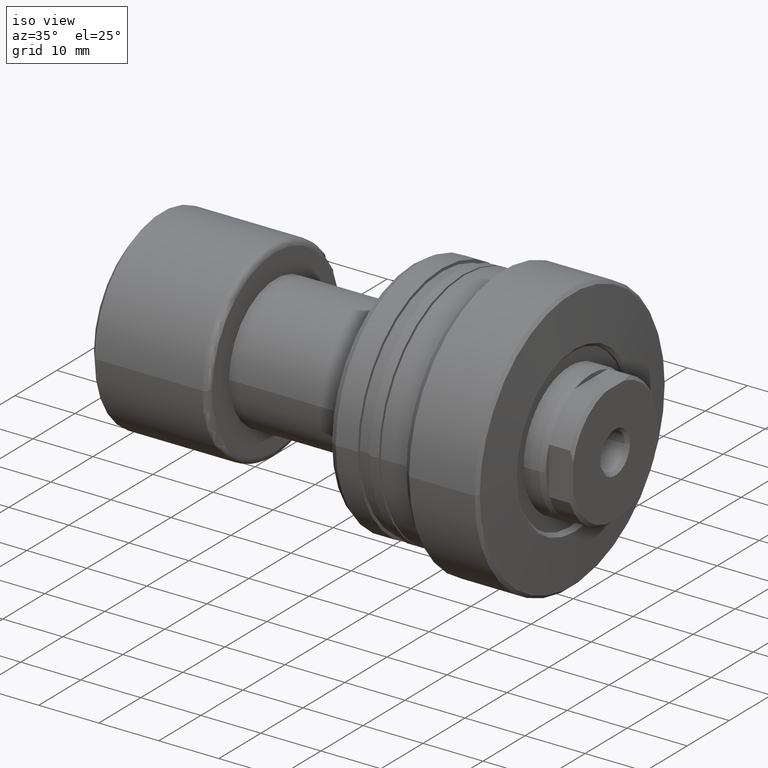
[diagram: clean part render]
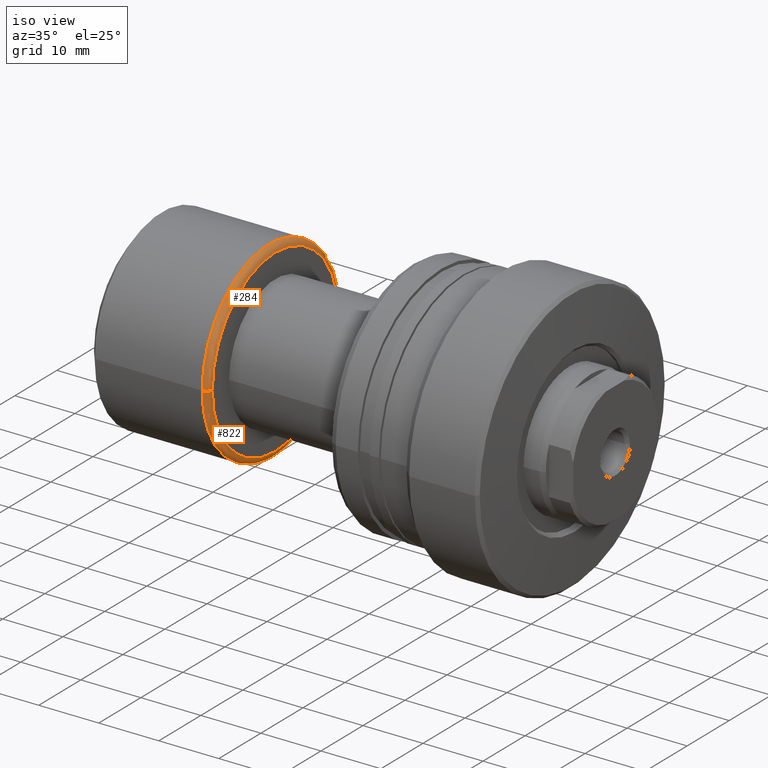
[diagram: same view with one multi-face feature highlighted, each face labeled with its STEP entity id]
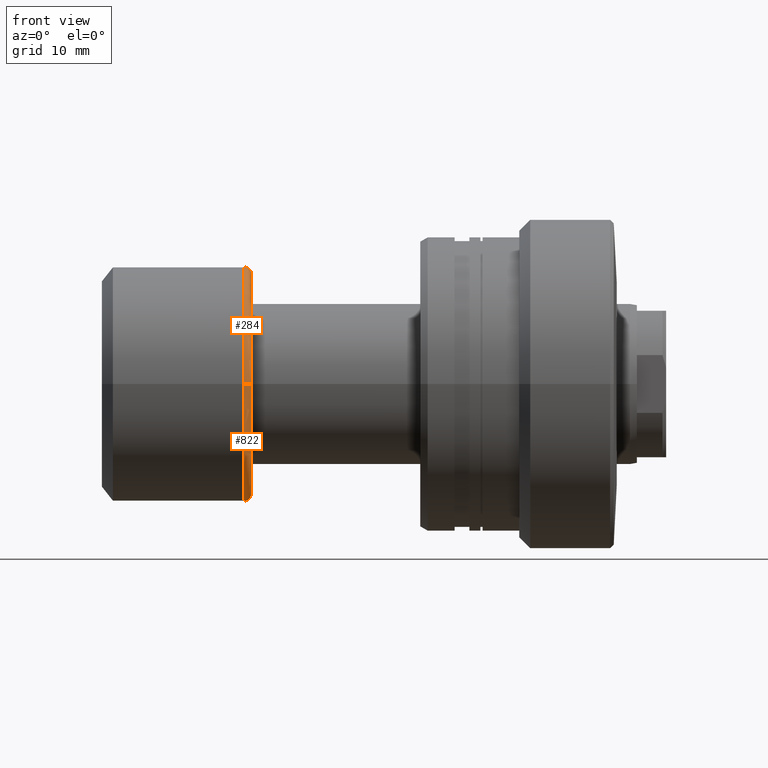
[diagram: same view with one multi-face feature highlighted, each face labeled with its STEP entity id]
A machine part, iso view. The highlighted faces form ONE feature: a constant-radius fillet chain: 2 tangent blend faces with common blend radius 1 mm. The faces share edges in the B-rep.
A second angle (front view) of the same feature is appended — it is thin or edge-on in the first view.
Their STEP definitions:
[1] entity #284 (Torus):
#17 = EDGE_CURVE ( 'NONE', #211, #490, #690, .T. ) ;
#20 = AXIS2_PLACEMENT_3D ( 'NONE', #922, #1156, #722 ) ;
#106 = DIRECTION ( 'NONE',  ( -1.000000000000000000, -1.069542322069065801E-17, -0.000000000000000000 ) ) ;
#211 = VERTEX_POINT ( 'NONE', #1368 ) ;
#271 = CIRCLE ( 'NONE', #1881, 1.000000000000000888 ) ;
#284 = ADVANCED_FACE ( 'NONE', ( #1382 ), #1713, .T. ) ;
#311 = DIRECTION ( 'NONE',  ( 0.000000000000000000, -1.000000000000000000, 0.000000000000000000 ) ) ;
#405 = ORIENTED_EDGE ( 'NONE', *, *, #1582, .F. ) ;
#471 = CIRCLE ( 'NONE', #2039, 16.00000000000000000 ) ;
#490 = VERTEX_POINT ( 'NONE', #1238 ) ;
#509 = ORIENTED_EDGE ( 'NONE', *, *, #624, .F. ) ;
#612 = CARTESIAN_POINT ( 'NONE',  ( 19.39999999999999858, 0.000000000000000000, 0.000000000000000000 ) ) ;
#624 = EDGE_CURVE ( 'NONE', #211, #1971, #1162, .T. ) ;
#634 = DIRECTION ( 'NONE',  ( 1.069542322069065801E-17, -1.000000000000000000, 0.000000000000000000 ) ) ;
#690 = CIRCLE ( 'NONE', #2069, 15.00000000000000000 ) ;
#722 = DIRECTION ( 'NONE',  ( -1.000000000000000000, 0.000000000000000000, 0.000000000000000000 ) ) ;
#922 = CARTESIAN_POINT ( 'NONE',  ( 19.39999999999999858, -15.00000000000000000, 0.000000000000000000 ) ) ;
#1035 = CARTESIAN_POINT ( 'NONE',  ( 19.40000000000000213, 2.074912104813987675E-16, 0.000000000000000000 ) ) ;
#1156 = DIRECTION ( 'NONE',  ( 0.000000000000000000, 0.000000000000000000, -1.000000000000000000 ) ) ;
#1162 = CIRCLE ( 'NONE', #20, 1.000000000000000888 ) ;
#1230 = CARTESIAN_POINT ( 'NONE',  ( 20.39999999999999858, 2.181866337020894116E-16, 0.000000000000000000 ) ) ;
#1233 = DIRECTION ( 'NONE',  ( 0.000000000000000000, -1.000000000000000000, -1.224646799147353454E-16 ) ) ;
#1238 = CARTESIAN_POINT ( 'NONE',  ( 20.39999999999999858, 15.00000000000000000, 1.898202538678397163E-15 ) ) ;
#1368 = CARTESIAN_POINT ( 'NONE',  ( 20.39999999999999858, -15.00000000000000000, 0.000000000000000000 ) ) ;
#1382 = FACE_OUTER_BOUND ( 'NONE', #1789, .T. ) ;
#1395 = ORIENTED_EDGE ( 'NONE', *, *, #17, .T. ) ;
#1454 = DIRECTION ( 'NONE',  ( -1.000000000000000000, -1.069542322069065801E-17, -0.000000000000000000 ) ) ;
#1469 = DIRECTION ( 'NONE',  ( 0.000000000000000000, -1.000000000000000000, 0.000000000000000000 ) ) ;
#1582 = EDGE_CURVE ( 'NONE', #1971, #1779, #471, .T. ) ;
#1680 = CARTESIAN_POINT ( 'NONE',  ( 19.40000000000000213, 16.00000000000000000, 1.959434878635765131E-15 ) ) ;
#1712 = AXIS2_PLACEMENT_3D ( 'NONE', #612, #1941, #634 ) ;
#1713 = TOROIDAL_SURFACE ( 'NONE', #1712, 15.00000000000000000, 1.000000000000000888 ) ;
#1779 = VERTEX_POINT ( 'NONE', #1680 ) ;
#1789 = EDGE_LOOP ( 'NONE', ( #1395, #2221, #405, #509 ) ) ;
#1814 = CARTESIAN_POINT ( 'NONE',  ( 19.40000000000000213, -16.00000000000000000, 0.000000000000000000 ) ) ;
#1881 = AXIS2_PLACEMENT_3D ( 'NONE', #2182, #2001, #1233 ) ;
#1941 = DIRECTION ( 'NONE',  ( -1.000000000000000000, -1.069542322069065801E-17, -0.000000000000000000 ) ) ;
#1971 = VERTEX_POINT ( 'NONE', #1814 ) ;
#2001 = DIRECTION ( 'NONE',  ( 1.309811581274509052E-33, -1.224646799147353207E-16, 1.000000000000000000 ) ) ;
#2039 = AXIS2_PLACEMENT_3D ( 'NONE', #1035, #106, #1469 ) ;
#2069 = AXIS2_PLACEMENT_3D ( 'NONE', #1230, #1454, #311 ) ;
#2182 = CARTESIAN_POINT ( 'NONE',  ( 19.39999999999999858, 15.00000000000000000, 1.836970198721029589E-15 ) ) ;
#2221 = ORIENTED_EDGE ( 'NONE', *, *, #2336, .T. ) ;
#2336 = EDGE_CURVE ( 'NONE', #490, #1779, #271, .T. ) ;
[2] entity #822 (Torus):
#20 = AXIS2_PLACEMENT_3D ( 'NONE', #922, #1156, #722 ) ;
#140 = DIRECTION ( 'NONE',  ( 0.000000000000000000, -1.000000000000000000, 0.000000000000000000 ) ) ;
#211 = VERTEX_POINT ( 'NONE', #1368 ) ;
#271 = CIRCLE ( 'NONE', #1881, 1.000000000000000888 ) ;
#306 = AXIS2_PLACEMENT_3D ( 'NONE', #647, #1746, #2306 ) ;
#337 = ORIENTED_EDGE ( 'NONE', *, *, #1593, .F. ) ;
#490 = VERTEX_POINT ( 'NONE', #1238 ) ;
#575 = TOROIDAL_SURFACE ( 'NONE', #306, 15.00000000000000000, 1.000000000000000888 ) ;
#624 = EDGE_CURVE ( 'NONE', #211, #1971, #1162, .T. ) ;
#647 = CARTESIAN_POINT ( 'NONE',  ( 19.39999999999999858, 0.000000000000000000, 0.000000000000000000 ) ) ;
#722 = DIRECTION ( 'NONE',  ( -1.000000000000000000, 0.000000000000000000, 0.000000000000000000 ) ) ;
#822 = ADVANCED_FACE ( 'NONE', ( #1545 ), #575, .T. ) ;
#889 = DIRECTION ( 'NONE',  ( -1.000000000000000000, -1.069542322069065801E-17, -0.000000000000000000 ) ) ;
#922 = CARTESIAN_POINT ( 'NONE',  ( 19.39999999999999858, -15.00000000000000000, 0.000000000000000000 ) ) ;
#1156 = DIRECTION ( 'NONE',  ( 0.000000000000000000, 0.000000000000000000, -1.000000000000000000 ) ) ;
#1162 = CIRCLE ( 'NONE', #20, 1.000000000000000888 ) ;
#1225 = CARTESIAN_POINT ( 'NONE',  ( 19.40000000000000213, 2.074912104813987675E-16, 0.000000000000000000 ) ) ;
#1233 = DIRECTION ( 'NONE',  ( 0.000000000000000000, -1.000000000000000000, -1.224646799147353454E-16 ) ) ;
#1235 = CARTESIAN_POINT ( 'NONE',  ( 20.39999999999999858, 2.181866337020894116E-16, 0.000000000000000000 ) ) ;
#1238 = CARTESIAN_POINT ( 'NONE',  ( 20.39999999999999858, 15.00000000000000000, 1.898202538678397163E-15 ) ) ;
#1368 = CARTESIAN_POINT ( 'NONE',  ( 20.39999999999999858, -15.00000000000000000, 0.000000000000000000 ) ) ;
#1412 = CIRCLE ( 'NONE', #1915, 15.00000000000000000 ) ;
#1447 = DIRECTION ( 'NONE',  ( -1.000000000000000000, -1.069542322069065801E-17, -0.000000000000000000 ) ) ;
#1545 = FACE_OUTER_BOUND ( 'NONE', #1587, .T. ) ;
#1548 = EDGE_CURVE ( 'NONE', #490, #211, #1412, .T. ) ;
#1587 = EDGE_LOOP ( 'NONE', ( #2384, #1742, #1599, #337 ) ) ;
#1593 = EDGE_CURVE ( 'NONE', #1779, #1971, #2431, .T. ) ;
#1599 = ORIENTED_EDGE ( 'NONE', *, *, #624, .T. ) ;
#1680 = CARTESIAN_POINT ( 'NONE',  ( 19.40000000000000213, 16.00000000000000000, 1.959434878635765131E-15 ) ) ;
#1742 = ORIENTED_EDGE ( 'NONE', *, *, #1548, .T. ) ;
#1746 = DIRECTION ( 'NONE',  ( -1.000000000000000000, -1.069542322069065801E-17, -0.000000000000000000 ) ) ;
#1759 = AXIS2_PLACEMENT_3D ( 'NONE', #1225, #889, #2195 ) ;
#1779 = VERTEX_POINT ( 'NONE', #1680 ) ;
#1814 = CARTESIAN_POINT ( 'NONE',  ( 19.40000000000000213, -16.00000000000000000, 0.000000000000000000 ) ) ;
#1881 = AXIS2_PLACEMENT_3D ( 'NONE', #2182, #2001, #1233 ) ;
#1915 = AXIS2_PLACEMENT_3D ( 'NONE', #1235, #1447, #140 ) ;
#1971 = VERTEX_POINT ( 'NONE', #1814 ) ;
#2001 = DIRECTION ( 'NONE',  ( 1.309811581274509052E-33, -1.224646799147353207E-16, 1.000000000000000000 ) ) ;
#2182 = CARTESIAN_POINT ( 'NONE',  ( 19.39999999999999858, 15.00000000000000000, 1.836970198721029589E-15 ) ) ;
#2195 = DIRECTION ( 'NONE',  ( 0.000000000000000000, -1.000000000000000000, 0.000000000000000000 ) ) ;
#2306 = DIRECTION ( 'NONE',  ( 1.069542322069065801E-17, -1.000000000000000000, 0.000000000000000000 ) ) ;
#2336 = EDGE_CURVE ( 'NONE', #490, #1779, #271, .T. ) ;
#2384 = ORIENTED_EDGE ( 'NONE', *, *, #2336, .F. ) ;
#2431 = CIRCLE ( 'NONE', #1759, 16.00000000000000000 ) ;